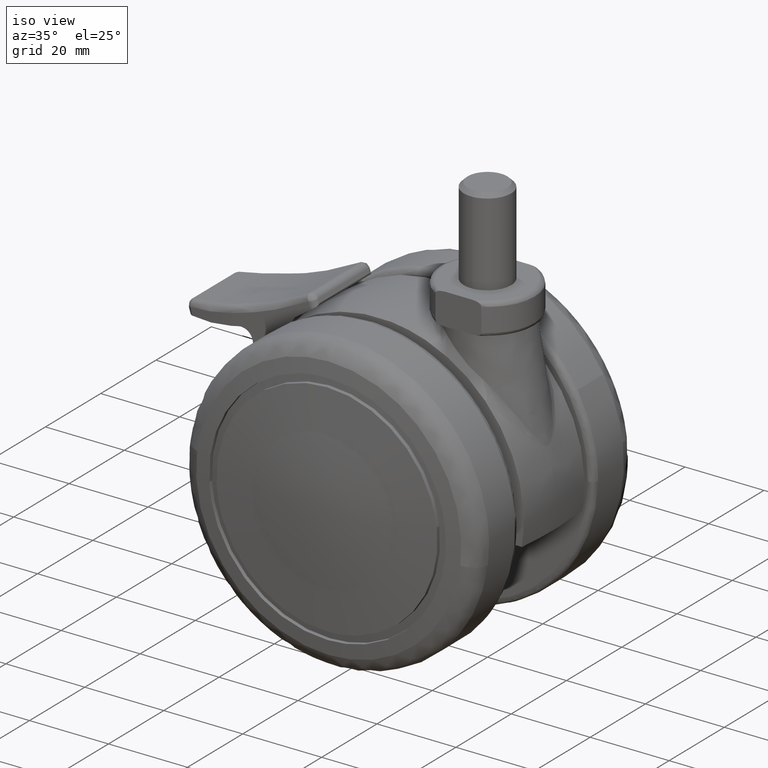
[diagram: clean part render]
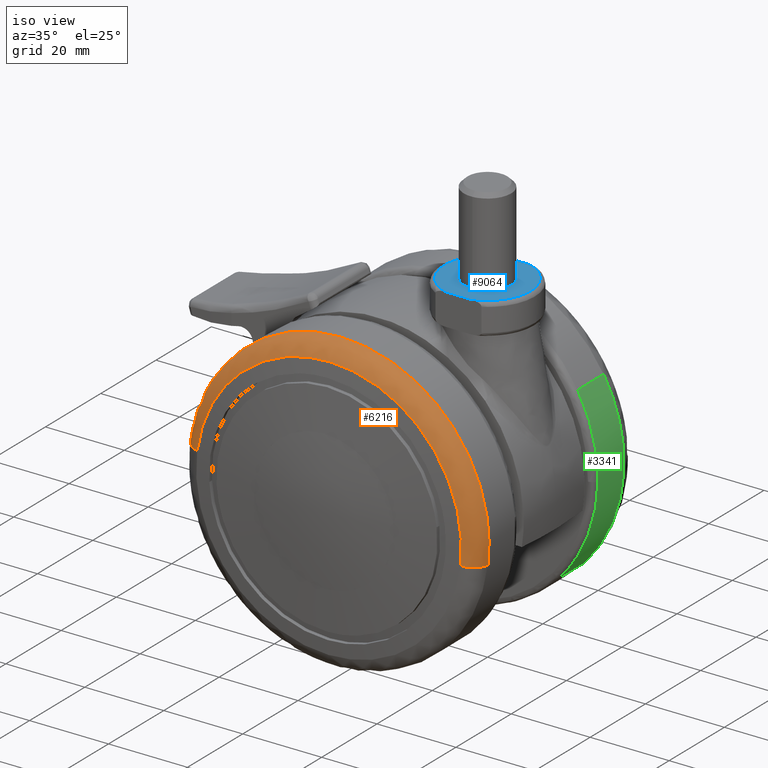
[diagram: same view with three faces highlighted in distinct colors, each labeled with its STEP entity id]
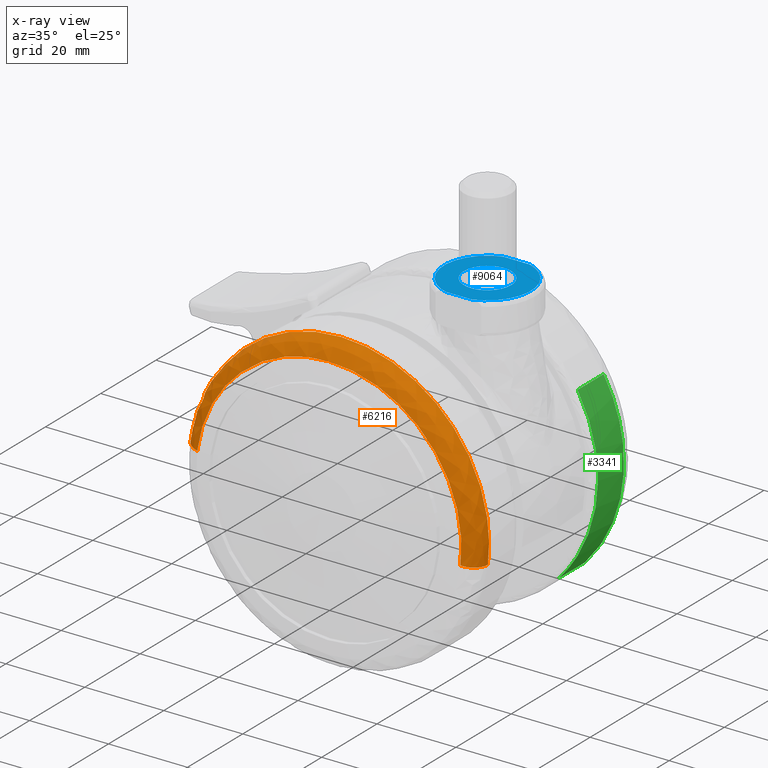
[diagram: x-ray of the same camera — body ghosted, the three highlighted faces saturated]
A machine part, iso view with three faces highlighted in distinct colors.
The next image is the same camera in x-ray (body ghosted, the three faces saturated) — at least one of them is partly hidden behind the body in this view.
Their STEP definitions:

[orange] entity #6216 — the highlighted face is a freeform B-spline surface patch.
#5211=CARTESIAN_POINT('',(-32.810496489496707,-24.399328109309391,18.158230093043390));
#5212=VERTEX_POINT('',#5211);
#5218=CARTESIAN_POINT('',(0.0,-24.399333999994649,37.500000000000000));
#5219=VERTEX_POINT('',#5218);
#5220=CARTESIAN_POINT('',(-32.810496489496707,-24.399328109309394,18.158230093043393));
#5221=CARTESIAN_POINT('',(-22.106229686055766,-24.399331388397972,37.499999999998892));
#5222=CARTESIAN_POINT('',(0.0,-24.399333999994649,37.500000000000000));
#5230=(BOUNDED_CURVE()B_SPLINE_CURVE(2,(#5220,#5221,#5222),.UNSPECIFIED.,.F.,.U.)B_SPLINE_CURVE_WITH_KNOTS((3,3),(0.832484242696156,1.0),.UNSPECIFIED.)CURVE()GEOMETRIC_REPRESENTATION_ITEM()RATIONAL_B_SPLINE_CURVE((0.870495174332078,0.803743082565217,1.0))REPRESENTATION_ITEM(''));
#5231=EDGE_CURVE('',#5212,#5219,#5230,.T.);
#5233=CARTESIAN_POINT('',(37.204305166883898,-24.399326188506208,-4.699965643215492));
#5234=VERTEX_POINT('',#5233);
#5235=CARTESIAN_POINT('',(0.0,-24.399333999994649,37.500000000000000));
#5236=CARTESIAN_POINT('',(37.499999999988518,-24.399330556615077,37.500000000001457));
#5237=CARTESIAN_POINT('',(37.499999999975479,-24.399326650870851,3.095923E-012));
#5238=CARTESIAN_POINT('',(37.499999999974655,-24.399326405143864,-2.359284531549784));
#5239=CARTESIAN_POINT('',(37.204305166883898,-24.399326188506215,-4.699965643215492));
#5247=(BOUNDED_CURVE()B_SPLINE_CURVE(2,(#5235,#5236,#5237,#5238,#5239),.UNSPECIFIED.,.F.,.U.)B_SPLINE_CURVE_WITH_KNOTS((3,2,3),(0.0,0.250000000000000,0.271678604797366),.UNSPECIFIED.)CURVE()GEOMETRIC_REPRESENTATION_ITEM()RATIONAL_B_SPLINE_CURVE((1.0,0.707106781186547,1.0,0.974601934646059,0.953608626263525))REPRESENTATION_ITEM(''));
#5248=EDGE_CURVE('',#5219,#5234,#5247,.T.);
#5380=CARTESIAN_POINT('',(-37.204305166883898,-24.399326188506208,4.699965643215483));
#5381=VERTEX_POINT('',#5380);
#5397=CARTESIAN_POINT('',(-37.204305166883898,-24.399326188506208,4.699965643215483));
#5398=CARTESIAN_POINT('',(-36.300876477023081,-24.399327040079232,11.851387424931298));
#5399=CARTESIAN_POINT('',(-32.810496489496707,-24.399328109309394,18.158230093043393));
#5407=(BOUNDED_CURVE()B_SPLINE_CURVE(2,(#5397,#5398,#5399),.UNSPECIFIED.,.F.,.U.)B_SPLINE_CURVE_WITH_KNOTS((3,3),(0.771678604797366,0.832484242696156),.UNSPECIFIED.)CURVE()GEOMETRIC_REPRESENTATION_ITEM()RATIONAL_B_SPLINE_CURVE((0.953608626263525,0.894725154760729,0.870495174332078))REPRESENTATION_ITEM(''));
#5408=EDGE_CURVE('',#5381,#5212,#5407,.T.);
#6128=CARTESIAN_POINT('',(-33.051926028659302,-28.888321986242563,4.175429271647275));
#6129=CARTESIAN_POINT('',(-28.876496757012045,-28.888321986242563,37.227355300306577));
#6130=CARTESIAN_POINT('',(4.175429271647273,-28.888321986242563,33.051926028659302));
#6131=CARTESIAN_POINT('',(37.227355300306577,-28.888321986242563,28.876496757012045));
#6132=CARTESIAN_POINT('',(33.051926028659302,-28.888321986242563,-4.175429271647271));
#6133=CARTESIAN_POINT('',(-37.483168608343398,-28.575279005864250,4.735225392482692));
#6134=CARTESIAN_POINT('',(-32.747943215860715,-28.575279005864243,42.218394000826102));
#6135=CARTESIAN_POINT('',(4.735225392482692,-28.575279005864250,37.483168608343398));
#6136=CARTESIAN_POINT('',(42.218394000826102,-28.575279005864243,32.747943215860715));
#6137=CARTESIAN_POINT('',(37.483168608343398,-28.575279005864250,-4.735225392482689));
#6138=CARTESIAN_POINT('',(-37.194890035910078,-24.107298746891264,4.698807339607862));
#6139=CARTESIAN_POINT('',(-32.496082696302217,-24.107298746891271,41.893697375517945));
#6140=CARTESIAN_POINT('',(4.698807339607861,-24.107298746891264,37.194890035910078));
#6141=CARTESIAN_POINT('',(41.893697375517945,-24.107298746891271,32.496082696302217));
#6142=CARTESIAN_POINT('',(37.194890035910078,-24.107298746891264,-4.698807339607858));
#6150=(BOUNDED_SURFACE()B_SPLINE_SURFACE(2,2,((#6128,#6133,#6138),(#6129,#6134,#6139),(#6130,#6135,#6140),(#6131,#6136,#6141),(#6132,#6137,#6142)),.UNSPECIFIED.,.F.,.F.,.U.)B_SPLINE_SURFACE_WITH_KNOTS((3,2,3),(3,3),(0.0,62.116317330797422,124.232634661594800),(0.0,7.429334798136238),.UNSPECIFIED.)GEOMETRIC_REPRESENTATION_ITEM()RATIONAL_B_SPLINE_SURFACE(((0.913808802762508,0.647340700267334,0.912559472443971),(0.646160401141329,0.457738998897080,0.645276991201150),(0.913808802762508,0.647340700267334,0.912559472443971),(0.646160401141329,0.457738998897080,0.645276991201150),(0.913808802762508,0.647340700267334,0.912559472443971)))REPRESENTATION_ITEM('')SURFACE());
#6151=ORIENTED_EDGE('',*,*,#5231,.F.);
#6152=ORIENTED_EDGE('',*,*,#5408,.F.);
#6153=CARTESIAN_POINT('',(-33.339904532097563,-28.858494213721428,4.211809418134779));
#6154=VERTEX_POINT('',#6153);
#6155=CARTESIAN_POINT('',(-33.339904532097570,-28.858494213721428,4.211809418134779));
#6156=CARTESIAN_POINT('',(-37.204309998914269,-28.330117918834748,4.699981806232175));
#6157=CARTESIAN_POINT('',(-37.204305166883906,-24.399326188506215,4.699965643215483));
#6165=(BOUNDED_CURVE()B_SPLINE_CURVE(2,(#6155,#6156,#6157),.UNSPECIFIED.,.F.,.U.)B_SPLINE_CURVE_WITH_KNOTS((3,3),(-1.708945452584801,-0.294709517043640),.UNSPECIFIED.)CURVE()GEOMETRIC_REPRESENTATION_ITEM()RATIONAL_B_SPLINE_CURVE((0.890702965221645,0.670389785073000,0.889567140202593))REPRESENTATION_ITEM(''));
#6166=EDGE_CURVE('',#6154,#5381,#6165,.T.);
#6167=ORIENTED_EDGE('',*,*,#6166,.F.);
#6168=CARTESIAN_POINT('',(0.0,-28.858494288676152,33.604889112773051));
#6169=VERTEX_POINT('',#6168);
#6170=CARTESIAN_POINT('',(-33.339904532097563,-28.858494213721428,4.211809418134779));
#6171=CARTESIAN_POINT('',(-29.626695034109876,-28.858494288676148,33.604889112773044));
#6172=CARTESIAN_POINT('',(0.0,-28.858494288676152,33.604889112773051));
#6180=(BOUNDED_CURVE()B_SPLINE_CURVE(2,(#6170,#6171,#6172),.UNSPECIFIED.,.F.,.U.)B_SPLINE_CURVE_WITH_KNOTS((3,3),(0.771678743529824,1.0),.UNSPECIFIED.)CURVE()GEOMETRIC_REPRESENTATION_ITEM()RATIONAL_B_SPLINE_CURVE((0.953608357569911,0.732505009075674,1.0))REPRESENTATION_ITEM(''));
#6181=EDGE_CURVE('',#6154,#6169,#6180,.T.);
#6182=ORIENTED_EDGE('',*,*,#6181,.T.);
#6183=CARTESIAN_POINT('',(33.339904532097563,-28.858494213721428,-4.211809418134782));
#6184=VERTEX_POINT('',#6183);
#6185=CARTESIAN_POINT('',(0.0,-28.858494288676152,33.604889112773051));
#6186=CARTESIAN_POINT('',(33.604889112773058,-28.858494288676152,33.604889112773058));
#6187=CARTESIAN_POINT('',(33.604889112773051,-28.858494288676152,0.0));
#6188=CARTESIAN_POINT('',(33.604889112773051,-28.858494288676145,-2.114240417763689));
#6189=CARTESIAN_POINT('',(33.339904532097563,-28.858494213721428,-4.211809418134782));
#6197=(BOUNDED_CURVE()B_SPLINE_CURVE(2,(#6185,#6186,#6187,#6188,#6189),.UNSPECIFIED.,.F.,.U.)B_SPLINE_CURVE_WITH_KNOTS((3,2,3),(0.0,0.250000000000000,0.271678743529824),.UNSPECIFIED.)CURVE()GEOMETRIC_REPRESENTATION_ITEM()RATIONAL_B_SPLINE_CURVE((1.0,0.707106781186548,1.0,0.974601772110874,0.953608357569911))REPRESENTATION_ITEM(''));
#6198=EDGE_CURVE('',#6169,#6184,#6197,.T.);
#6199=ORIENTED_EDGE('',*,*,#6198,.T.);
#6200=CARTESIAN_POINT('',(33.339904532097563,-28.858494213721432,-4.211809418134782));
#6201=CARTESIAN_POINT('',(37.204309998914269,-28.330117918834731,-4.699981806232182));
#6202=CARTESIAN_POINT('',(37.204305166883898,-24.399326188506212,-4.699965643215492));
#6210=(BOUNDED_CURVE()B_SPLINE_CURVE(2,(#6200,#6201,#6202),.UNSPECIFIED.,.F.,.U.)B_SPLINE_CURVE_WITH_KNOTS((3,3),(-1.708945452584801,-0.294709517043640),.UNSPECIFIED.)CURVE()GEOMETRIC_REPRESENTATION_ITEM()RATIONAL_B_SPLINE_CURVE((0.890702965221644,0.670389785073000,0.889567140202593))REPRESENTATION_ITEM(''));
#6211=EDGE_CURVE('',#6184,#5234,#6210,.T.);
#6212=ORIENTED_EDGE('',*,*,#6211,.T.);
#6213=ORIENTED_EDGE('',*,*,#5248,.F.);
#6214=EDGE_LOOP('',(#6151,#6152,#6167,#6182,#6199,#6212,#6213));
#6215=FACE_OUTER_BOUND('',#6214,.T.);
#6216=ADVANCED_FACE('',(#6215),#6150,.T.);

[blue] entity #9064 — the highlighted face is a freeform B-spline surface patch.
#6702=CARTESIAN_POINT('',(20.366291237301692,-5.988808790525651,47.0));
#6703=VERTEX_POINT('',#6702);
#6709=CARTESIAN_POINT('',(26.000000000000110,0.0,47.0));
#6710=VERTEX_POINT('',#6709);
#6711=CARTESIAN_POINT('',(26.000000000000110,0.0,47.0));
#6712=CARTESIAN_POINT('',(26.000000000000107,-5.644236401259514,47.0));
#6713=CARTESIAN_POINT('',(20.366291237301688,-5.988808790525651,47.0));
#6721=(BOUNDED_CURVE()B_SPLINE_CURVE(2,(#6711,#6712,#6713),.UNSPECIFIED.,.F.,.U.)B_SPLINE_CURVE_WITH_KNOTS((3,3),(0.500000000000000,0.739332962236636),.UNSPECIFIED.)CURVE()GEOMETRIC_REPRESENTATION_ITEM()RATIONAL_B_SPLINE_CURVE((1.0,0.719603993289413,0.976072041661773))REPRESENTATION_ITEM(''));
#6722=EDGE_CURVE('',#6710,#6703,#6721,.T.);
#6724=CARTESIAN_POINT('',(25.616861472653209,2.109707846367686,47.0));
#6725=VERTEX_POINT('',#6724);
#6726=CARTESIAN_POINT('',(25.616861472653209,2.109707846367686,47.0));
#6727=CARTESIAN_POINT('',(26.000000000000110,1.089644316420683,47.0));
#6728=CARTESIAN_POINT('',(26.000000000000110,0.0,47.0));
#6736=(BOUNDED_CURVE()B_SPLINE_CURVE(2,(#6726,#6727,#6728),.UNSPECIFIED.,.F.,.U.)B_SPLINE_CURVE_WITH_KNOTS((3,3),(0.440284170897885,0.500000000000000),.UNSPECIFIED.)CURVE()GEOMETRIC_REPRESENTATION_ITEM()RATIONAL_B_SPLINE_CURVE((0.893499554634512,0.930038554400670,1.0))REPRESENTATION_ITEM(''));
#6737=EDGE_CURVE('',#6725,#6710,#6736,.T.);
#6787=CARTESIAN_POINT('',(13.999999999999890,0.0,47.0));
#6788=VERTEX_POINT('',#6787);
#6789=CARTESIAN_POINT('',(13.999999999999890,0.0,47.0));
#6790=CARTESIAN_POINT('',(13.999999999999888,6.000000000000111,47.000000000000007));
#6791=CARTESIAN_POINT('',(20.0,6.000000000000110,47.0));
#6792=CARTESIAN_POINT('',(24.155657574137820,6.000000000000110,46.999999999999993));
#6793=CARTESIAN_POINT('',(25.616861472653209,2.109707846367686,46.999999999999993));
#6801=(BOUNDED_CURVE()B_SPLINE_CURVE(2,(#6789,#6790,#6791,#6792,#6793),.UNSPECIFIED.,.F.,.U.)B_SPLINE_CURVE_WITH_KNOTS((3,2,3),(0.0,0.250000000000000,0.440284170897885),.UNSPECIFIED.)CURVE()GEOMETRIC_REPRESENTATION_ITEM()RATIONAL_B_SPLINE_CURVE((1.0,0.707106781186548,1.0,0.777068226785877,0.893499554634512))REPRESENTATION_ITEM(''));
#6802=EDGE_CURVE('',#6788,#6725,#6801,.T.);
#6804=CARTESIAN_POINT('',(20.366291237301692,-5.988808790525651,47.0));
#6805=CARTESIAN_POINT('',(20.183316579884337,-6.000000000000111,47.000000000000007));
#6806=CARTESIAN_POINT('',(20.0,-6.000000000000110,47.0));
#6807=CARTESIAN_POINT('',(13.999999999999888,-6.000000000000111,47.000000000000007));
#6808=CARTESIAN_POINT('',(13.999999999999890,0.0,47.0));
#6816=(BOUNDED_CURVE()B_SPLINE_CURVE(2,(#6804,#6805,#6806,#6807,#6808),.UNSPECIFIED.,.F.,.U.)B_SPLINE_CURVE_WITH_KNOTS((3,2,3),(0.739332962236636,0.750000000000000,1.0),.UNSPECIFIED.)CURVE()GEOMETRIC_REPRESENTATION_ITEM()RATIONAL_B_SPLINE_CURVE((0.976072041661773,0.987502787897135,1.0,0.707106781186548,1.0))REPRESENTATION_ITEM(''));
#6817=EDGE_CURVE('',#6703,#6788,#6816,.T.);
#8460=CARTESIAN_POINT('',(23.278719262151000,-10.500000000000000,47.0));
#8461=VERTEX_POINT('',#8460);
#8508=CARTESIAN_POINT('',(23.278719262151000,10.500000000000000,47.0));
#8509=VERTEX_POINT('',#8508);
#8539=CARTESIAN_POINT('',(23.278719262151000,-10.500000000000000,47.0));
#8540=CARTESIAN_POINT('',(30.999999999999996,-8.088960772984665,47.0));
#8541=CARTESIAN_POINT('',(31.0,0.0,47.0));
#8542=CARTESIAN_POINT('',(30.999999999999996,8.088960772984661,47.0));
#8543=CARTESIAN_POINT('',(23.278719262151011,10.500000000000000,47.0));
#8551=(BOUNDED_CURVE()B_SPLINE_CURVE(2,(#8539,#8540,#8541,#8542,#8543),.UNSPECIFIED.,.F.,.U.)B_SPLINE_CURVE_WITH_KNOTS((3,2,3),(0.0,0.500000000000000,1.0),.UNSPECIFIED.)CURVE()GEOMETRIC_REPRESENTATION_ITEM()RATIONAL_B_SPLINE_CURVE((1.0,0.805625653597337,1.0,0.805625653597337,1.0))REPRESENTATION_ITEM(''));
#8552=EDGE_CURVE('',#8461,#8509,#8551,.T.);
#8704=CARTESIAN_POINT('',(16.721280737849000,10.500000000000000,47.0));
#8705=VERTEX_POINT('',#8704);
#8752=CARTESIAN_POINT('',(16.721280737849000,-10.500000000000000,47.0));
#8753=VERTEX_POINT('',#8752);
#8783=CARTESIAN_POINT('',(16.721280737849000,10.500000000000000,47.0));
#8784=CARTESIAN_POINT('',(9.000000000000002,8.088960772984667,47.000000000000014));
#8785=CARTESIAN_POINT('',(9.000000000000002,0.0,47.0));
#8786=CARTESIAN_POINT('',(9.000000000000002,-8.088960772984661,47.000000000000014));
#8787=CARTESIAN_POINT('',(16.721280737849000,-10.500000000000000,47.0));
#8795=(BOUNDED_CURVE()B_SPLINE_CURVE(2,(#8783,#8784,#8785,#8786,#8787),.UNSPECIFIED.,.F.,.U.)B_SPLINE_CURVE_WITH_KNOTS((3,2,3),(0.0,0.500000000000000,1.0),.UNSPECIFIED.)CURVE()GEOMETRIC_REPRESENTATION_ITEM()RATIONAL_B_SPLINE_CURVE((1.0,0.805625653597337,1.0,0.805625653597337,1.0))REPRESENTATION_ITEM(''));
#8796=EDGE_CURVE('',#8705,#8753,#8795,.T.);
#8946=CARTESIAN_POINT('',(16.721280737849000,-10.500000000000000,47.0));
#8947=CARTESIAN_POINT('',(23.278719262151000,-10.500000000000000,47.0));
#8948=QUASI_UNIFORM_CURVE('',1,(#8946,#8947),.UNSPECIFIED.,.F.,.U.);
#8949=EDGE_CURVE('',#8753,#8461,#8948,.T.);
#8993=CARTESIAN_POINT('',(23.278719262151000,10.500000000000000,47.0));
#8994=CARTESIAN_POINT('',(16.721280737849000,10.500000000000000,47.0));
#8995=QUASI_UNIFORM_CURVE('',1,(#8993,#8994),.UNSPECIFIED.,.F.,.U.);
#8996=EDGE_CURVE('',#8509,#8705,#8995,.T.);
#9047=CARTESIAN_POINT('',(7.901100042640330,-11.548949959297930,47.0));
#9048=CARTESIAN_POINT('',(32.098900547445652,-11.548949959297930,47.0));
#9049=CARTESIAN_POINT('',(7.901100042640330,11.548950522561819,47.0));
#9050=CARTESIAN_POINT('',(32.098900547445652,11.548950522561819,47.0));
#9051=B_SPLINE_SURFACE_WITH_KNOTS('',1,1,((#9047,#9049),(#9048,#9050)),.UNSPECIFIED.,.F.,.F.,.U.,(2,2),(2,2),(0.0,24.197800504805318),(0.0,23.097900481859750),.UNSPECIFIED.);
#9052=ORIENTED_EDGE('',*,*,#8996,.T.);
#9053=ORIENTED_EDGE('',*,*,#8796,.T.);
#9054=ORIENTED_EDGE('',*,*,#8949,.T.);
#9055=ORIENTED_EDGE('',*,*,#8552,.T.);
#9056=EDGE_LOOP('',(#9052,#9053,#9054,#9055));
#9057=FACE_OUTER_BOUND('',#9056,.T.);
#9058=ORIENTED_EDGE('',*,*,#6722,.T.);
#9059=ORIENTED_EDGE('',*,*,#6817,.T.);
#9060=ORIENTED_EDGE('',*,*,#6802,.T.);
#9061=ORIENTED_EDGE('',*,*,#6737,.T.);
#9062=EDGE_LOOP('',(#9058,#9059,#9060,#9061));
#9063=FACE_BOUND('',#9062,.T.);
#9064=ADVANCED_FACE('',(#9057,#9063),#9051,.T.);

[green] entity #3341 — the highlighted face is a freeform B-spline surface patch.
#3124=CARTESIAN_POINT('',(32.339735482086667,14.999999999999950,18.983980324168360));
#3125=VERTEX_POINT('',#3124);
#3139=CARTESIAN_POINT('',(32.339734353394192,24.399329006749241,18.983982246888448));
#3140=VERTEX_POINT('',#3139);
#3141=CARTESIAN_POINT('',(32.339734353394192,24.399329006749241,18.983982246888448));
#3142=CARTESIAN_POINT('',(32.339735482086667,14.999999999999950,18.983980324168360));
#3143=QUASI_UNIFORM_CURVE('',1,(#3141,#3142),.UNSPECIFIED.,.F.,.U.);
#3144=EDGE_CURVE('',#3140,#3125,#3143,.T.);
#3193=CARTESIAN_POINT('',(27.647900959625900,24.399330694543298,-25.334631880609610));
#3194=VERTEX_POINT('',#3193);
#3208=CARTESIAN_POINT('',(27.647900709602212,14.999999998106549,-25.334632153449721));
#3209=VERTEX_POINT('',#3208);
#3210=CARTESIAN_POINT('',(27.647900959625900,24.399330694543298,-25.334631880609610));
#3211=CARTESIAN_POINT('',(27.647900709602212,14.999999998106549,-25.334632153449721));
#3212=QUASI_UNIFORM_CURVE('',1,(#3210,#3211),.UNSPECIFIED.,.F.,.U.);
#3213=EDGE_CURVE('',#3194,#3209,#3212,.T.);
#3263=CARTESIAN_POINT('',(27.647900130379671,24.634317350140499,-25.334632785587221));
#3264=CARTESIAN_POINT('',(46.365028661588063,24.634317350140492,-4.908471303873252));
#3265=CARTESIAN_POINT('',(32.339727444322889,24.634317350140503,18.983994016721248));
#3266=CARTESIAN_POINT('',(27.647900130379671,14.759142060261491,-25.334632785587221));
#3267=CARTESIAN_POINT('',(46.365028661588063,14.759142060261487,-4.908471303873252));
#3268=CARTESIAN_POINT('',(32.339727444322889,14.759142060261489,18.983994016721248));
#3276=(BOUNDED_SURFACE()B_SPLINE_SURFACE(2,1,((#3263,#3266),(#3264,#3267),(#3265,#3268)),.UNSPECIFIED.,.F.,.F.,.U.)B_SPLINE_SURFACE_WITH_KNOTS((3,3),(2,2),(0.0,49.366827145749227),(0.0,9.875175289879010),.UNSPECIFIED.)GEOMETRIC_REPRESENTATION_ITEM()RATIONAL_B_SPLINE_SURFACE(((1.0,1.0),(0.765685424949238,0.765685424949238),(0.906274169979695,0.906274169979695)))REPRESENTATION_ITEM('')SURFACE());
#3277=CARTESIAN_POINT('',(37.497039157640998,14.999999994236701,-0.471226495792344));
#3278=VERTEX_POINT('',#3277);
#3279=CARTESIAN_POINT('',(32.339735482086681,14.999999999999945,18.983980324168364));
#3280=CARTESIAN_POINT('',(37.499999999999993,15.000000000000004,10.193327011367961));
#3281=CARTESIAN_POINT('',(37.500000000000000,15.0,-1.836910E-015));
#3282=CARTESIAN_POINT('',(37.500000000000000,15.000000000000002,-0.235622549862493));
#3283=CARTESIAN_POINT('',(37.497039157640998,14.999999994236694,-0.471226495792344));
#3291=(BOUNDED_CURVE()B_SPLINE_CURVE(2,(#3279,#3280,#3281,#3282,#3283),.UNSPECIFIED.,.F.,.U.)B_SPLINE_CURVE_WITH_KNOTS((3,2,3),(0.163621906524036,0.250000000000000,0.252215704079835),.UNSPECIFIED.)CURVE()GEOMETRIC_REPRESENTATION_ITEM()RATIONAL_B_SPLINE_CURVE((0.867534019620026,0.898801768667423,1.0,0.997404141200477,0.994854295640415))REPRESENTATION_ITEM(''));
#3292=EDGE_CURVE('',#3125,#3278,#3291,.T.);
#3293=ORIENTED_EDGE('',*,*,#3292,.T.);
#3294=CARTESIAN_POINT('',(37.497039157640998,14.999999994236699,-0.471226495792344));
#3295=CARTESIAN_POINT('',(37.317189500131335,14.999999996464151,-14.782454128279495));
#3296=CARTESIAN_POINT('',(27.647900709602208,14.999999998106553,-25.334632153449721));
#3304=(BOUNDED_CURVE()B_SPLINE_CURVE(2,(#3294,#3295,#3296),.UNSPECIFIED.,.F.,.U.)B_SPLINE_CURVE_WITH_KNOTS((3,3),(0.252215704079835,0.368415202181307),.UNSPECIFIED.)CURVE()GEOMETRIC_REPRESENTATION_ITEM()RATIONAL_B_SPLINE_CURVE((0.994854295640415,0.861131215463799,0.853959781689985))REPRESENTATION_ITEM(''));
#3305=EDGE_CURVE('',#3278,#3209,#3304,.T.);
#3306=ORIENTED_EDGE('',*,*,#3305,.T.);
#3307=ORIENTED_EDGE('',*,*,#3213,.F.);
#3308=CARTESIAN_POINT('',(37.204308988794310,24.399327215464631,4.699935389107671));
#3309=VERTEX_POINT('',#3308);
#3310=CARTESIAN_POINT('',(37.204308988794310,24.399327215464627,4.699935389107671));
#3311=CARTESIAN_POINT('',(37.499999999941707,24.399327403620372,2.359269223915415));
#3312=CARTESIAN_POINT('',(37.499999999943590,24.399327617040811,-7.125703E-012));
#3313=CARTESIAN_POINT('',(37.499999999955264,24.399328936220464,-14.582951737943162));
#3314=CARTESIAN_POINT('',(27.647900959625908,24.399330694543309,-25.334631880609610));
#3322=(BOUNDED_CURVE()B_SPLINE_CURVE(2,(#3310,#3311,#3312,#3313,#3314),.UNSPECIFIED.,.F.,.U.)B_SPLINE_CURVE_WITH_KNOTS((3,2,3),(0.228321532286490,0.250000000000000,0.368415204142752),.UNSPECIFIED.)CURVE()GEOMETRIC_REPRESENTATION_ITEM()RATIONAL_B_SPLINE_CURVE((0.953608891764519,0.974602095249786,1.0,0.861267958808709,0.853959781447877))REPRESENTATION_ITEM(''));
#3323=EDGE_CURVE('',#3309,#3194,#3322,.T.);
#3324=ORIENTED_EDGE('',*,*,#3323,.F.);
#3325=CARTESIAN_POINT('',(32.339734353394192,24.399329006749230,18.983982246888456));
#3326=CARTESIAN_POINT('',(36.238962510509886,24.399328005778571,12.341540153044839));
#3327=CARTESIAN_POINT('',(37.204308988794310,24.399327215464627,4.699935389107671));
#3335=(BOUNDED_CURVE()B_SPLINE_CURVE(2,(#3325,#3326,#3327),.UNSPECIFIED.,.F.,.U.)B_SPLINE_CURVE_WITH_KNOTS((3,3),(0.163621897406238,0.228321532286490),.UNSPECIFIED.)CURVE()GEOMETRIC_REPRESENTATION_ITEM()RATIONAL_B_SPLINE_CURVE((0.867534013018978,0.890954435812489,0.953608891764519))REPRESENTATION_ITEM(''));
#3336=EDGE_CURVE('',#3140,#3309,#3335,.T.);
#3337=ORIENTED_EDGE('',*,*,#3336,.F.);
#3338=ORIENTED_EDGE('',*,*,#3144,.T.);
#3339=EDGE_LOOP('',(#3293,#3306,#3307,#3324,#3337,#3338));
#3340=FACE_OUTER_BOUND('',#3339,.T.);
#3341=ADVANCED_FACE('',(#3340),#3276,.T.);